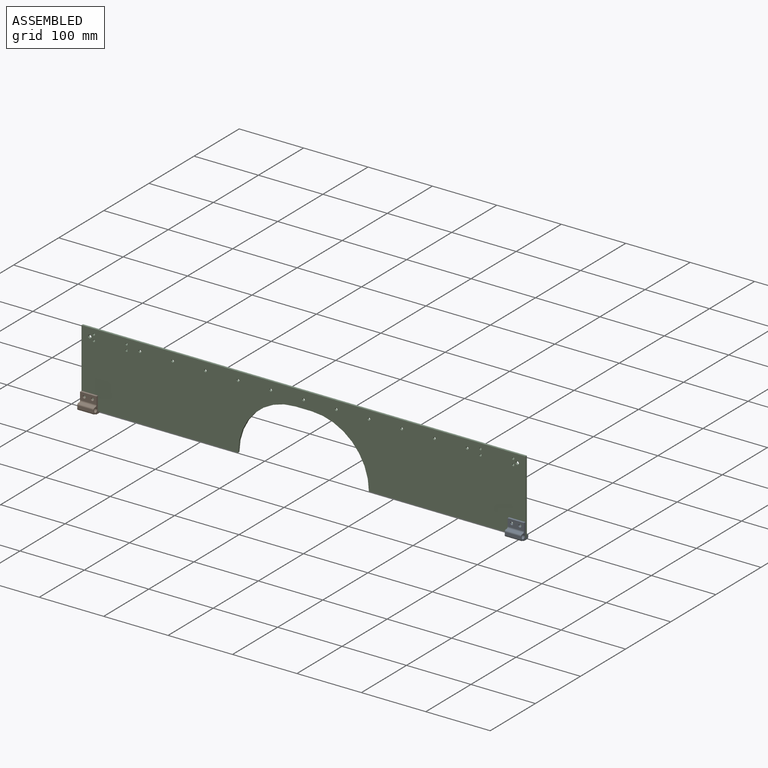
[diagram: assembled view]
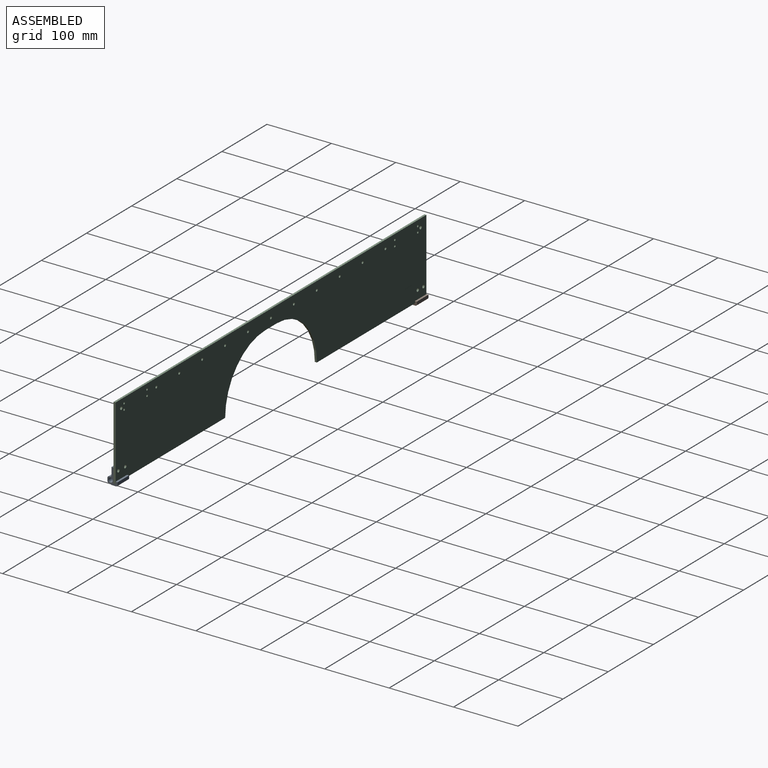
[diagram: assembled view, second angle]
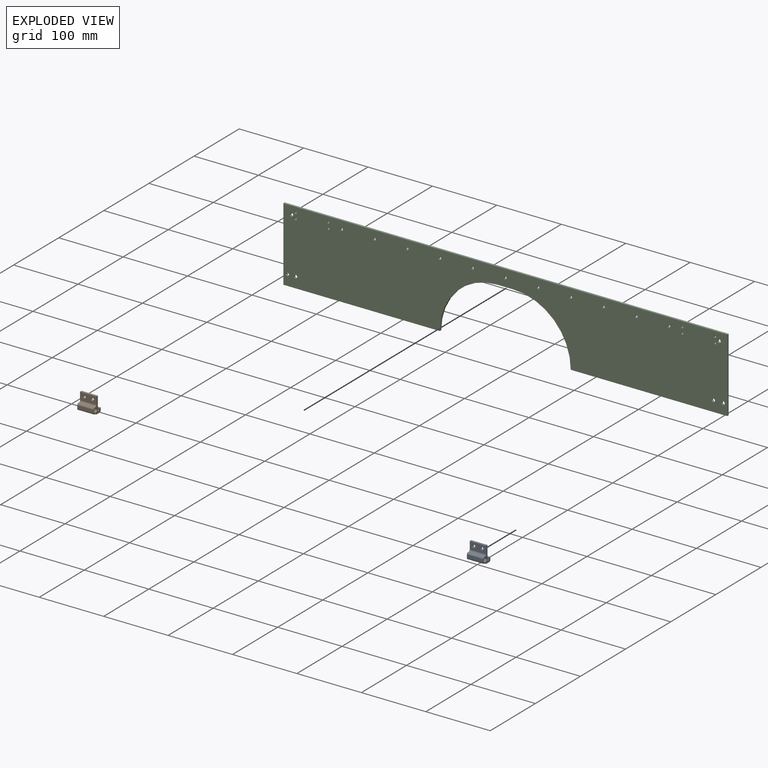
[diagram: exploded view]
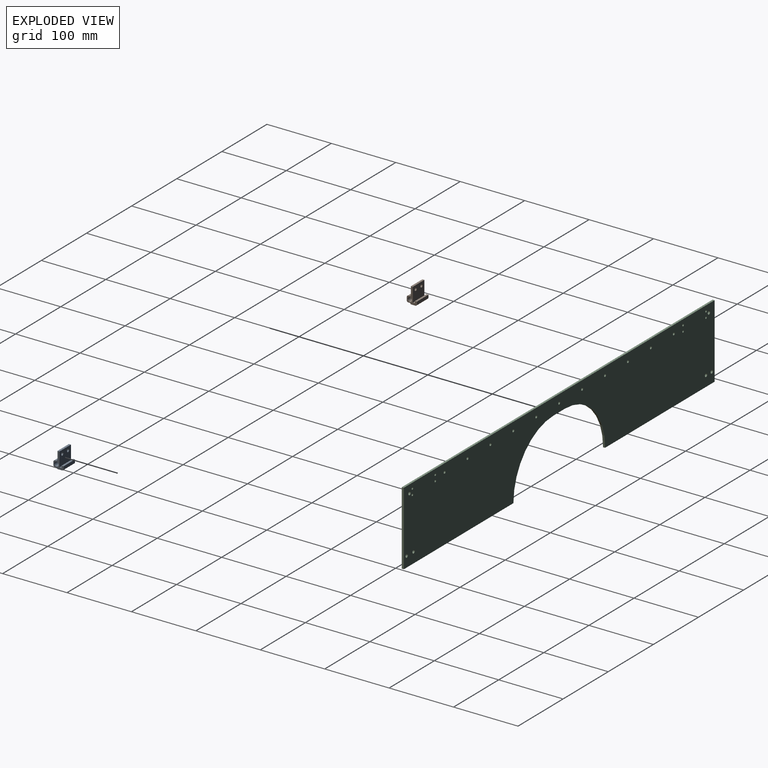
[diagram: exploded view, second angle]
ASSEMBLY  parts=3 mates=2
PART A: 21 faces, bbox 25.4x25.4x15.9 mm
  f0: plane 25.4x6.99mm, normal (1,0,0), area 177.4mm2, adj f12,f13,f14,f15
  f1: plane 25.4x1.46mm, normal (1,0,0), area 37mm2, adj f12,f13,f15,f16
  f2: plane 25.4x4.45mm, normal (0,0,1), area 112.9mm2, adj f12,f13,f16,f17
  f3: plane 25.4x1.27mm, normal (-1,0,0), area 32.3mm2, adj f12,f13,f17,f18
  f4: plane 25.4x11.75mm, normal (0,0,1), area 266.6mm2, adj f5,f12,f13,f18,f19,f20
  f5: plane 25.4x3.18mm, normal (-1,0,0), area 80.6mm2, adj f4,f6,f12,f13
  f6: plane 25.4x22.23mm, normal (0,0,-1), area 532.8mm2, adj f5,f7,f12,f13,f19,f20
  f7: plane 25.4x3.18mm, normal (-1,0,0), area 80.6mm2, adj f6,f8,f12,f13
  f8: plane 25.4x3.18mm, normal (0,0,1), area 80.6mm2, adj f7,f9,f12,f13
  f9: plane 25.4x3.18mm, normal (-1,0,0), area 80.6mm2, adj f8,f10,f12,f13
  f10: plane 25.4x3.81mm, normal (0,0,-1), area 96.8mm2, adj f9,f12,f13,f14
  f11: cylinder r=3.37mm len=25.4mm, axis (0,1,0), area 537.1mm2, adj f12,f13
  f12: plane 25.4x15.88mm, normal (0,-1,0), area 134.1mm2, adj f0,f1,f2,f3,f4,f5,f6,f7
  f13: plane 25.4x15.88mm, normal (0,1,0), area 134.1mm2, adj f0,f1,f2,f3,f4,f5,f6,f7
  f14: cylinder r=2.54mm len=25.4mm, axis (0,1,0), area 101.3mm2, adj f0,f10,f12,f13
  f15: cylinder r=2.54mm len=25.4mm, axis (0,1,0), area 76.5mm2, adj f0,f1,f12,f13
  f16: cylinder r=2.54mm len=25.4mm, axis (0,-1,0), area 101.3mm2, adj f1,f2,f12,f13
  f17: cylinder r=2.54mm len=25.4mm, axis (0,1,0), area 101.3mm2, adj f2,f3,f12,f13
  f18: cylinder r=2.54mm len=25.4mm, axis (0,-1,0), area 101.3mm2, adj f3,f4,f12,f13
  f19: cylinder r=2.25mm len=4.5mm, axis (0,0,1), area 44.8mm2, adj f4,f6
  f20: cylinder r=2.25mm len=4.5mm, axis (0,0,1), area 44.8mm2, adj f4,f6
PART B: same geometry as A
PART C: 35 faces, bbox 689x3.2x114.3 mm
  f0: plane 242.89x3.18mm, normal (0,0,-1), area 771.2mm2, adj f1,f2,f5,f8
  f1: plane 688.98x114.3mm, normal (0,-1,0), area 63745.2mm2, adj f0,f3,f4,f5,f6,f7,f8,f9
  f2: plane 688.98x114.3mm, normal (0,1,0), area 63745.2mm2, adj f0,f3,f4,f5,f6,f7,f8,f9
  f3: plane 114.3x3.18mm, normal (-1,0,0), area 362.9mm2, adj f1,f2,f4,f6
  f4: plane 242.89x3.18mm, normal (0,0,-1), area 771.2mm2, adj f1,f2,f3,f10
  f5: plane 114.3x3.18mm, normal (1,0,0), area 362.9mm2, adj f0,f1,f2,f6
  f6: plane 688.98x3.18mm, normal (0,0,1), area 2187.5mm2, adj f1,f2,f3,f5
  f7: cylinder r=2.55mm len=5.11mm, axis (0,-1,0), area 50.9mm2, adj f1,f2
  f8: cylinder r=88.9mm len=88.9mm, axis (0,-1,0), area 443.4mm2, adj f0,f1,f2,f9
  f9: plane 25.4x3.18mm, normal (0,0,-1), area 80.6mm2, adj f1,f2,f8,f10
  f10: cylinder r=88.9mm len=88.9mm, axis (0,-1,0), area 443.4mm2, adj f1,f2,f4,f9
  f11: cylinder r=2.55mm len=5.11mm, axis (0,-1,0), area 50.9mm2, adj f1,f2
  f12: cylinder r=2.55mm len=5.11mm, axis (0,-1,0), area 50.9mm2, adj f1,f2
  f13: cylinder r=2.55mm len=5.11mm, axis (0,-1,0), area 50.9mm2, adj f1,f2
  f14: cylinder r=2.55mm len=5.11mm, axis (0,-1,0), area 50.9mm2, adj f1,f2
  f15: cylinder r=2.55mm len=5.11mm, axis (0,-1,0), area 50.9mm2, adj f1,f2
  f16: cylinder r=1.65mm len=3.3mm, axis (0,-1,0), area 32.9mm2, adj f1,f2
  f17: cylinder r=1.65mm len=3.3mm, axis (0,-1,0), area 32.9mm2, adj f1,f2
  f18: cylinder r=1.65mm len=3.3mm, axis (0,-1,0), area 32.9mm2, adj f1,f2
  f19: cylinder r=1.65mm len=3.3mm, axis (0,-1,0), area 32.9mm2, adj f1,f2
  f20: cylinder r=1.65mm len=3.3mm, axis (0,-1,0), area 32.9mm2, adj f1,f2
  f21: cylinder r=1.65mm len=3.3mm, axis (0,-1,0), area 32.9mm2, adj f1,f2
  f22: cylinder r=1.65mm len=3.3mm, axis (0,-1,0), area 32.9mm2, adj f1,f2
  f23: cylinder r=1.65mm len=3.3mm, axis (0,-1,0), area 32.9mm2, adj f1,f2
  f24: cylinder r=2.02mm len=4.04mm, axis (0,-1,0), area 40.3mm2, adj f1,f2
  f25: cylinder r=2.02mm len=4.04mm, axis (0,-1,0), area 40.3mm2, adj f1,f2
  f26: cylinder r=2.02mm len=4.04mm, axis (0,-1,0), area 40.3mm2, adj f1,f2
  f27: cylinder r=2.02mm len=4.04mm, axis (0,-1,0), area 40.3mm2, adj f1,f2
  f28: cylinder r=2.02mm len=4.04mm, axis (0,-1,0), area 40.3mm2, adj f1,f2
  f29: cylinder r=2.02mm len=4.04mm, axis (0,-1,0), area 40.3mm2, adj f1,f2
  f30: cylinder r=2.02mm len=4.04mm, axis (0,-1,0), area 40.3mm2, adj f1,f2
  f31: cylinder r=2.02mm len=4.04mm, axis (0,-1,0), area 40.3mm2, adj f1,f2
  f32: cylinder r=2.02mm len=4.04mm, axis (0,-1,0), area 40.3mm2, adj f1,f2
  f33: cylinder r=2.02mm len=4.04mm, axis (0,-1,0), area 40.3mm2, adj f1,f2
  f34: cylinder r=2.02mm len=4.04mm, axis (0,-1,0), area 40.3mm2, adj f1,f2
PLACE A rot(axis=(0.58,0.58,-0.58),120deg) t=(320.77,-23.26,-68.37)mm
PLACE B rot(axis=(0.58,0.58,-0.58),120deg) t=(-342.81,-23.26,-68.37)mm
PLACE C t=(-23.72,-20.09,-11.97)mm
MATE fastened B.f20 <-> C.f12  axis (0,1,0) through (-361.86,-23.26,-52.77)mm
MATE fastened A.f19 <-> C.f14  axis (0,1,0) through (314.42,-23.26,-52.77)mm
